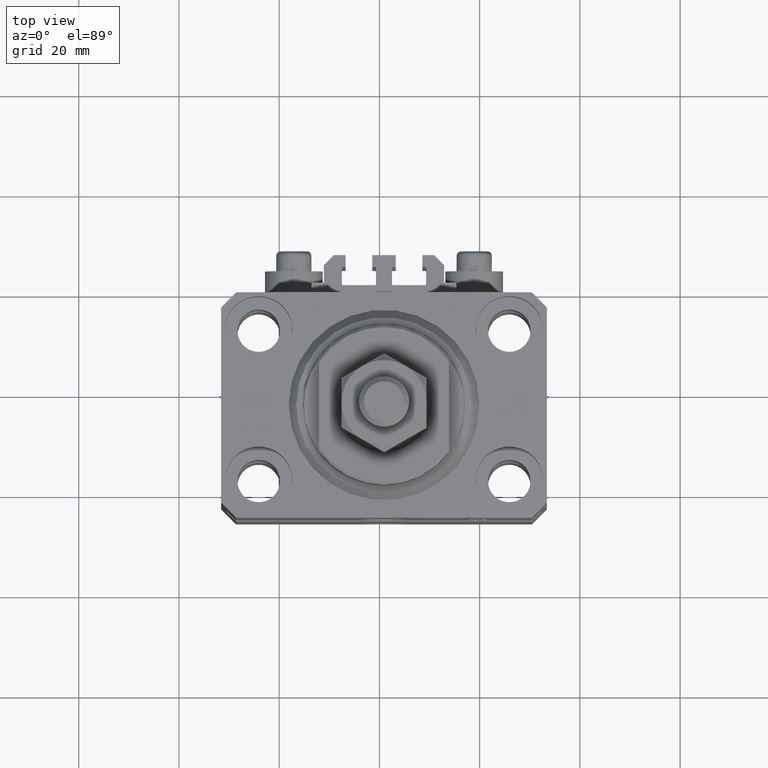
[diagram: clean part render]
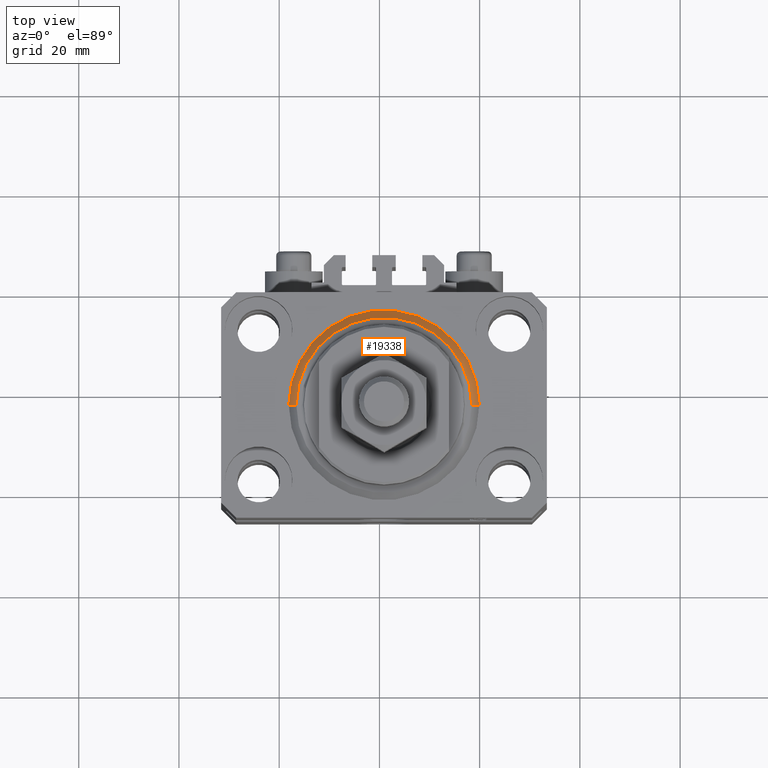
[diagram: same view with one face highlighted and labeled with its STEP entity id]
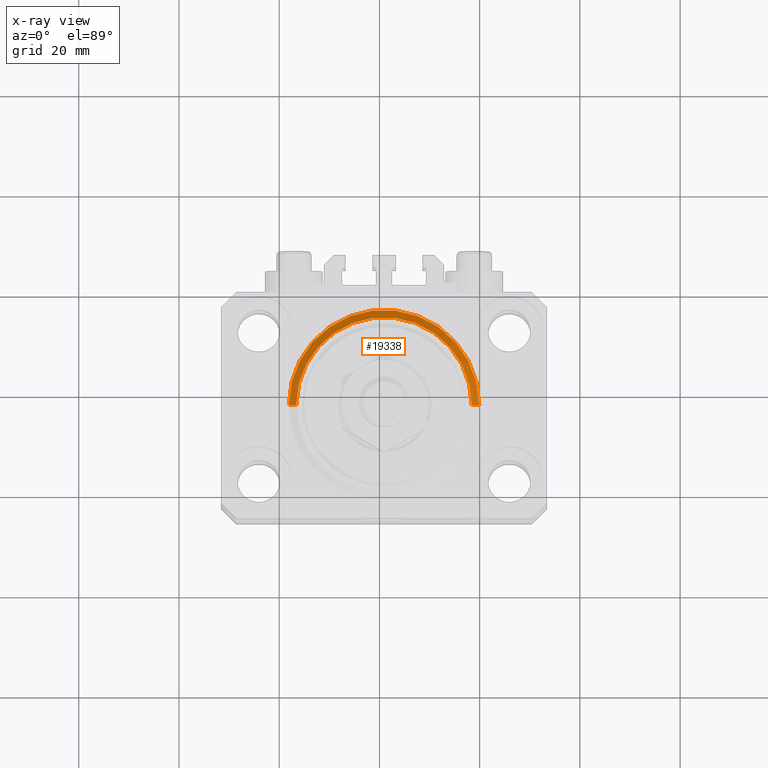
[diagram: x-ray of the same camera — body ghosted, the highlighted face saturated]
A machine part, top view. The second image highlights one B-rep face of the part: STEP entity #19338.
The next image is the same camera in x-ray: the body ghosted, the highlighted face saturated — about 0% of this face is hidden behind the body in this view.
In plain terms, the highlighted conical surface has half-angle 45 deg.
Its self-contained STEP definition (entity closure, byte-faithful):
#3953 = CARTESIAN_POINT ( 'NONE',  ( 19.00000000000000000, 2.326828918379970970E-15, 1.500000000000004885 ) ) ;
#5376 = CARTESIAN_POINT ( 'NONE',  ( 0.000000000000000000, 0.000000000000000000, 0.000000000000000000 ) ) ;
#6200 = CARTESIAN_POINT ( 'NONE',  ( -19.00000000000000000, 0.000000000000000000, 1.500000000000004885 ) ) ;
#6654 = VERTEX_POINT ( 'NONE', #3953 ) ;
#6733 = EDGE_CURVE ( 'NONE', #45036, #6654, #41265, .T. ) ;
#7513 = DIRECTION ( 'NONE',  ( 0.7071067811865483499, 0.000000000000000000, 0.7071067811865467956 ) ) ;
#8145 = DIRECTION ( 'NONE',  ( 1.000000000000000000, 0.000000000000000000, 0.000000000000000000 ) ) ;
#9394 = DIRECTION ( 'NONE',  ( -0.7071067811865483499, 8.659560562354943952E-17, 0.7071067811865467956 ) ) ;
#10959 = CARTESIAN_POINT ( 'NONE',  ( 0.000000000000000000, 0.000000000000000000, 1.500000000000004885 ) ) ;
#11196 = ORIENTED_EDGE ( 'NONE', *, *, #42275, .F. ) ;
#13533 = CARTESIAN_POINT ( 'NONE',  ( -17.49999999999999289, 2.234980408443919215E-15, 0.000000000000000000 ) ) ;
#14281 = CIRCLE ( 'NONE', #33146, 19.00000000000000000 ) ;
#14412 = FACE_OUTER_BOUND ( 'NONE', #37940, .T. ) ;
#15400 = CARTESIAN_POINT ( 'NONE',  ( 19.00000000000000000, 0.000000000000000000, 1.500000000000004885 ) ) ;
#16251 = ORIENTED_EDGE ( 'NONE', *, *, #25076, .T. ) ;
#16935 = CONICAL_SURFACE ( 'NONE', #44456, 19.00000000000000000, 0.7853981633974492782 ) ;
#18775 = CARTESIAN_POINT ( 'NONE',  ( 0.000000000000000000, 0.000000000000000000, 1.500000000000004885 ) ) ;
#19338 = ADVANCED_FACE ( 'NONE', ( #14412 ), #16935, .T. ) ;
#20407 = DIRECTION ( 'NONE',  ( -0.000000000000000000, -0.000000000000000000, -1.000000000000000000 ) ) ;
#21116 = ORIENTED_EDGE ( 'NONE', *, *, #37370, .F. ) ;
#22651 = VECTOR ( 'NONE', #9394, 1000.000000000000000 ) ;
#23540 = ORIENTED_EDGE ( 'NONE', *, *, #6733, .F. ) ;
#25076 = EDGE_CURVE ( 'NONE', #31431, #47622, #47088, .T. ) ;
#25521 = CARTESIAN_POINT ( 'NONE',  ( 17.49999999999999289, 0.000000000000000000, 0.000000000000000000 ) ) ;
#27112 = CIRCLE ( 'NONE', #44524, 17.49999999999999289 ) ;
#31251 = DIRECTION ( 'NONE',  ( 1.000000000000000000, 0.000000000000000000, 0.000000000000000000 ) ) ;
#31338 = CARTESIAN_POINT ( 'NONE',  ( -19.00000000000000000, 2.326828918379970970E-15, 1.500000000000004885 ) ) ;
#31431 = VERTEX_POINT ( 'NONE', #13533 ) ;
#33146 = AXIS2_PLACEMENT_3D ( 'NONE', #18775, #37240, #8145 ) ;
#37240 = DIRECTION ( 'NONE',  ( -0.000000000000000000, -0.000000000000000000, 1.000000000000000000 ) ) ;
#37370 = EDGE_CURVE ( 'NONE', #6654, #47622, #14281, .T. ) ;
#37940 = EDGE_LOOP ( 'NONE', ( #11196, #16251, #21116, #23540 ) ) ;
#41022 = DIRECTION ( 'NONE',  ( -0.000000000000000000, -0.000000000000000000, 1.000000000000000000 ) ) ;
#41265 = LINE ( 'NONE', #15400, #42122 ) ;
#42122 = VECTOR ( 'NONE', #7513, 1000.000000000000000 ) ;
#42275 = EDGE_CURVE ( 'NONE', #31431, #45036, #27112, .T. ) ;
#44456 = AXIS2_PLACEMENT_3D ( 'NONE', #10959, #41022, #47021 ) ;
#44524 = AXIS2_PLACEMENT_3D ( 'NONE', #5376, #20407, #31251 ) ;
#45036 = VERTEX_POINT ( 'NONE', #25521 ) ;
#47021 = DIRECTION ( 'NONE',  ( 1.000000000000000000, 0.000000000000000000, 0.000000000000000000 ) ) ;
#47088 = LINE ( 'NONE', #31338, #22651 ) ;
#47622 = VERTEX_POINT ( 'NONE', #6200 ) ;